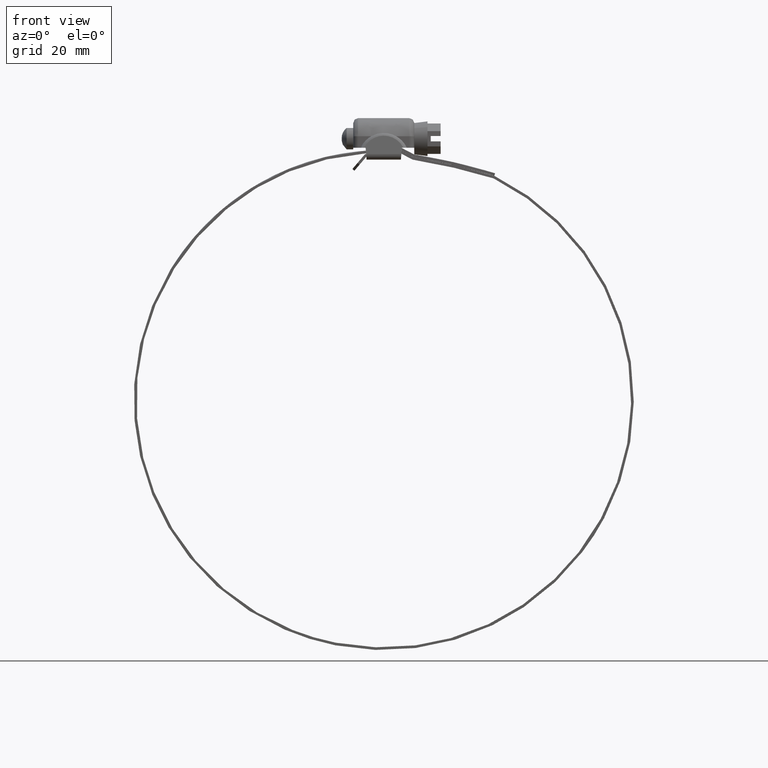
[diagram: clean part render]
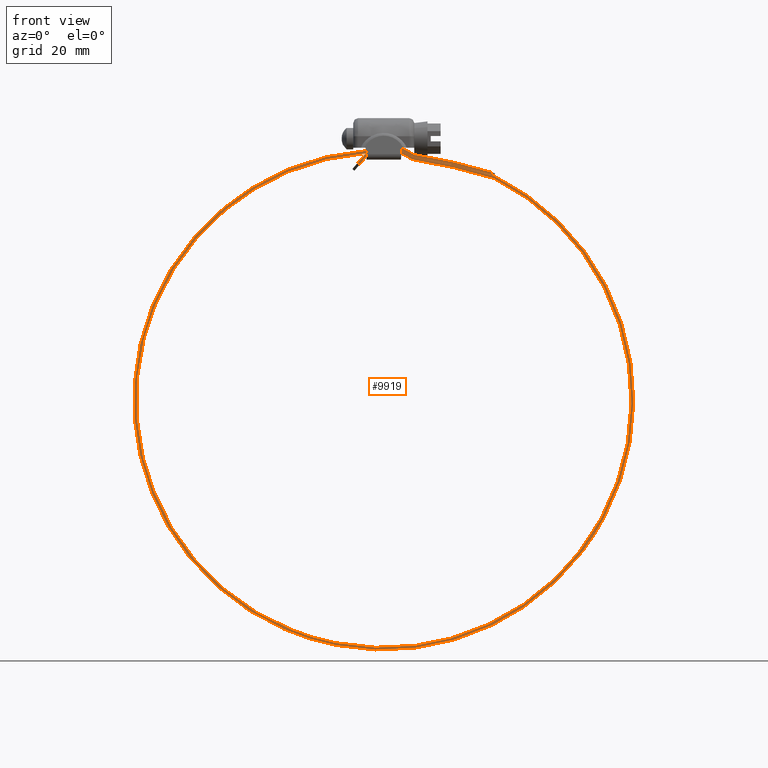
[diagram: same view with one face highlighted and labeled with its STEP entity id]
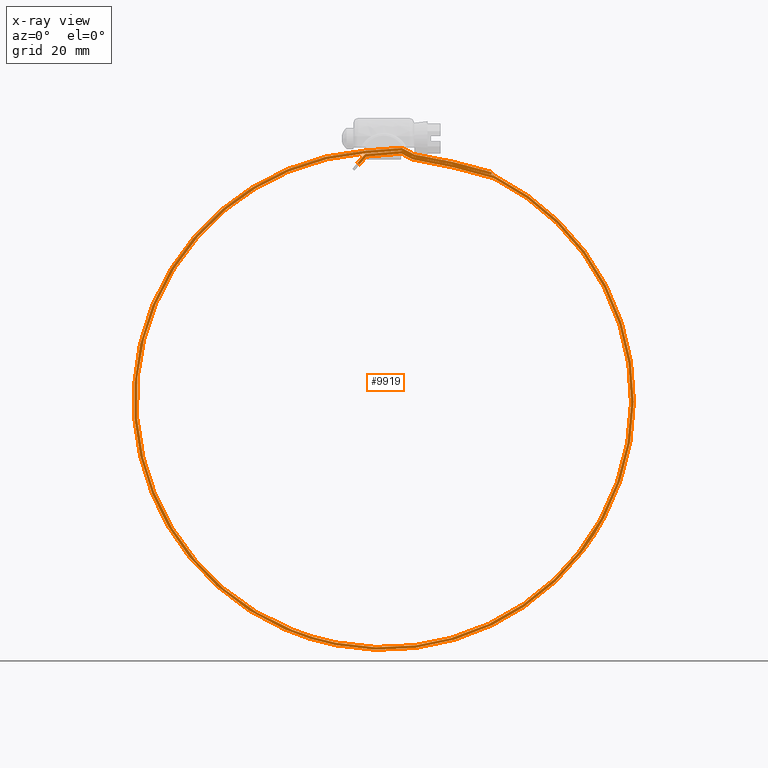
[diagram: x-ray of the same camera — body ghosted, the highlighted face saturated]
A machine part, front view. The second image highlights one B-rep face of the part: STEP entity #9919.
The next image is the same camera in x-ray: the body ghosted, the highlighted face saturated — about 0% of this face is hidden behind the body in this view.
In plain terms, the highlighted face is a freeform B-spline surface patch.
Its self-contained STEP definition (entity closure, byte-faithful):
#3607=CARTESIAN_POINT('',(-7.334361929926100,-6.500000000000000,7.958637885833559));
#3608=VERTEX_POINT('',#3607);
#3616=CARTESIAN_POINT('',(-7.943455344057590,-6.500000000000000,8.477295010398191));
#3617=VERTEX_POINT('',#3616);
#3618=CARTESIAN_POINT('',(-7.943455344057590,-6.500000000000000,8.477295010398191));
#3619=CARTESIAN_POINT('',(-7.334361929926100,-6.500000000000000,7.958637885833559));
#3620=QUASI_UNIFORM_CURVE('',1,(#3618,#3619),.UNSPECIFIED.,.F.,.U.);
#3621=EDGE_CURVE('',#3617,#3608,#3620,.T.);
#7412=CARTESIAN_POINT('',(5.350584004149351,-6.500000000000000,11.284100049500440));
#7413=VERTEX_POINT('',#7412);
#7414=CARTESIAN_POINT('',(-5.275000303620000,-6.500000000000000,10.377082643439200));
#7415=VERTEX_POINT('',#7414);
#7416=CARTESIAN_POINT('',(5.350584004149351,-6.500000000000000,11.284100049500440));
#7417=CARTESIAN_POINT('',(-5.275000303620000,-6.500000000000000,10.377082643439200));
#7418=QUASI_UNIFORM_CURVE('',1,(#7416,#7417),.UNSPECIFIED.,.F.,.U.);
#7419=EDGE_CURVE('',#7413,#7415,#7418,.T.);
#7457=CARTESIAN_POINT('',(8.409524026193219,-6.500000000000000,9.652007014257469));
#7458=VERTEX_POINT('',#7457);
#7459=CARTESIAN_POINT('',(8.409524026193219,-6.500000000000000,9.652007014257469));
#7460=CARTESIAN_POINT('',(7.411814090376696,-6.500000000000010,10.235884569071681));
#7461=CARTESIAN_POINT('',(6.391114566021566,-6.499999999999984,10.780479185074430));
#7462=CARTESIAN_POINT('',(5.350584004149351,-6.500000000000000,11.284100049500440));
#7463=B_SPLINE_CURVE_WITH_KNOTS('',3,(#7459,#7460,#7461,#7462),.UNSPECIFIED.,.F.,.U.,(4,4),(1.960010E-010,3.468006973094209),.UNSPECIFIED.);
#7464=EDGE_CURVE('',#7458,#7413,#7463,.T.);
#7498=CARTESIAN_POINT('',(9.034344727401120,-6.500000000000000,9.428133363201031));
#7499=VERTEX_POINT('',#7498);
#7500=CARTESIAN_POINT('',(8.409524026193219,-6.500000000000000,9.652007014257469));
#7501=CARTESIAN_POINT('',(8.601531745470265,-6.500000000000003,9.539531337299104));
#7502=CARTESIAN_POINT('',(8.814583246503087,-6.500000000000007,9.463149329200387));
#7503=CARTESIAN_POINT('',(9.034344727401120,-6.500000000000000,9.428133363201031));
#7504=B_SPLINE_CURVE_WITH_KNOTS('',3,(#7500,#7501,#7502,#7503),.UNSPECIFIED.,.F.,.U.,(4,4),(0.000000018586229,0.667550729342896),.UNSPECIFIED.);
#7505=EDGE_CURVE('',#7458,#7499,#7504,.T.);
#7539=CARTESIAN_POINT('',(33.150857247208052,-6.500000000000000,3.834687449468040));
#7540=VERTEX_POINT('',#7539);
#7541=CARTESIAN_POINT('',(33.150857247208052,-6.500000000000000,3.834687449468040));
#7542=CARTESIAN_POINT('',(21.286673602179302,-6.500000000000000,7.468167339103021));
#7543=CARTESIAN_POINT('',(9.034344727401120,-6.500000000000000,9.428133363201031));
#7551=(BOUNDED_CURVE()B_SPLINE_CURVE(2,(#7541,#7542,#7543),.UNSPECIFIED.,.F.,.U.)CURVE()GEOMETRIC_REPRESENTATION_ITEM()QUASI_UNIFORM_CURVE()RATIONAL_B_SPLINE_CURVE((1.0,0.997600974387081,1.0))REPRESENTATION_ITEM(''));
#7552=EDGE_CURVE('',#7540,#7499,#7551,.T.);
#7592=CARTESIAN_POINT('',(33.425985728803802,-6.500000000000000,3.724938107956930));
#7593=VERTEX_POINT('',#7592);
#7594=CARTESIAN_POINT('',(33.425985728803802,-6.500000000000000,3.724938107956930));
#7595=CARTESIAN_POINT('',(33.150857247208052,-6.500000000000000,3.834687449468040));
#7596=QUASI_UNIFORM_CURVE('',1,(#7594,#7595),.UNSPECIFIED.,.F.,.U.);
#7597=EDGE_CURVE('',#7593,#7540,#7596,.T.);
#7641=CARTESIAN_POINT('',(-5.338461257189120,-6.500000000000000,11.395269278505181));
#7642=VERTEX_POINT('',#7641);
#7643=CARTESIAN_POINT('',(-14.558013353557570,-6.500000000000000,-136.988024527932990));
#7644=VERTEX_POINT('',#7643);
#7645=CARTESIAN_POINT('',(-5.338461257189120,-6.500000000000000,11.395269278505181));
#7646=CARTESIAN_POINT('',(-8.839073002824588,-6.499999999999994,11.145637640756149));
#7647=CARTESIAN_POINT('',(-14.969169750287460,-6.500000000000004,10.272537669454190));
#7648=CARTESIAN_POINT('',(-23.788038318695289,-6.500000000000046,7.879603603241993));
#7649=CARTESIAN_POINT('',(-30.717045281121742,-6.499999999999887,5.133980738027380));
#7650=CARTESIAN_POINT('',(-37.595842927194923,-6.500000000000005,1.616103376315774));
#7651=CARTESIAN_POINT('',(-43.522346783040753,-6.500000000000044,-2.167441237042125));
#7652=CARTESIAN_POINT('',(-49.680326249766637,-6.499999999999912,-7.066958850217896));
#7653=CARTESIAN_POINT('',(-55.027600322506800,-6.500000000000043,-12.255521630897370));
#7654=CARTESIAN_POINT('',(-60.168055779909409,-6.499999999999987,-18.401045571593919));
#7655=CARTESIAN_POINT('',(-64.391517027488518,-6.500000000000004,-24.710498029391239));
#7656=CARTESIAN_POINT('',(-68.086762280790651,-6.499999999999999,-31.658218938984909));
#7657=CARTESIAN_POINT('',(-70.797958370658137,-6.500000000000003,-38.296630191258579));
#7658=CARTESIAN_POINT('',(-73.164313358935217,-6.499999999999999,-46.241565019510134));
#7659=CARTESIAN_POINT('',(-74.574747411570371,-6.500000000000000,-53.993457485310657));
#7660=CARTESIAN_POINT('',(-75.093843785991808,-6.500000000000000,-61.987470941762567));
#7661=CARTESIAN_POINT('',(-74.894728276584146,-6.500000000000001,-69.151337258874506));
#7662=CARTESIAN_POINT('',(-73.978918484119760,-6.500000000000004,-76.544559184188373));
#7663=CARTESIAN_POINT('',(-72.332724373947684,-6.499999999999998,-83.666996652713053));
#7664=CARTESIAN_POINT('',(-69.660252097845685,-6.500000000000006,-91.662571386886299));
#7665=CARTESIAN_POINT('',(-66.378911589451860,-6.499999999999991,-98.674274824807640));
#7666=CARTESIAN_POINT('',(-62.046207829794007,-6.500000000000003,-105.740675100145690));
#7667=CARTESIAN_POINT('',(-57.412329846222562,-6.499999999999995,-111.930225913450400));
#7668=CARTESIAN_POINT('',(-52.192162547752240,-6.500000000000005,-117.447010579024000));
#7669=CARTESIAN_POINT('',(-46.463048217743527,-6.500000000000001,-122.418877945733900));
#7670=CARTESIAN_POINT('',(-40.762397152652170,-6.500000000000030,-126.531058565425890));
#7671=CARTESIAN_POINT('',(-32.838368367069869,-6.499999999999812,-131.079148403453100));
#7672=CARTESIAN_POINT('',(-24.119003282187649,-6.500000000000553,-134.682459640423500));
#7673=CARTESIAN_POINT('',(-17.449917377589081,-6.499999999999369,-136.415829005432410));
#7674=CARTESIAN_POINT('',(-14.558013353557570,-6.500000000000000,-136.988024527932990));
#7675=B_SPLINE_CURVE_WITH_KNOTS('',3,(#7645,#7646,#7647,#7648,#7649,#7650,#7651,#7652,#7653,#7654,#7655,#7656,#7657,#7658,#7659,#7660,#7661,#7662,#7663,#7664,#7665,#7666,#7667,#7668,#7669,#7670,#7671,#7672,#7673,#7674),.UNSPECIFIED.,.F.,.U.,(4,1,1,1,1,1,1,1,1,1,1,1,1,1,1,1,1,1,1,1,1,1,1,1,1,1,1,4),(0.000000010513844,10.528492650992950,18.530248075813091,27.374319465152411,32.849189425840137,41.693239027958271,48.431553257959202,56.433302936505697,64.013913218641562,72.436822031292451,79.175120242724205,87.597969977119632,93.915123619693986,104.022605962955300,111.181954793391500,117.920291690577900,125.500858715576300,133.502646059162000,139.819766944982400,150.769539278992200,156.665562656991800,164.667318739878510,173.932505646795310,179.407390756058310,187.409149826756790,194.989715022270300,206.781799653549910,215.625735641637900),.UNSPECIFIED.);
#7676=EDGE_CURVE('',#7642,#7644,#7675,.T.);
#7678=CARTESIAN_POINT('',(-14.558013353557570,-6.500000000000000,-136.988024527932990));
#7679=CARTESIAN_POINT('',(-10.564450373587601,-6.500000000000021,-137.778533414834410));
#7680=CARTESIAN_POINT('',(-3.427791399468834,-6.499999999999959,-138.594619889465410));
#7681=CARTESIAN_POINT('',(7.538133318076641,-6.499999999999994,-138.273694364109590));
#7682=CARTESIAN_POINT('',(18.089294179869359,-6.500000000000060,-136.497045437968210));
#7683=CARTESIAN_POINT('',(27.716125824517079,-6.499999999999887,-133.323208164474290));
#7684=CARTESIAN_POINT('',(35.836671547957529,-6.500000000000193,-129.452409439205810));
#7685=CARTESIAN_POINT('',(42.553678722824202,-6.500000000000097,-125.346454492267300));
#7686=CARTESIAN_POINT('',(49.798472459403193,-6.499999999999854,-119.777567807619900));
#7687=CARTESIAN_POINT('',(56.175282925111752,-6.500000000000130,-113.412012947915600));
#7688=CARTESIAN_POINT('',(62.035004978558298,-6.500000000000092,-105.860707994109500));
#7689=CARTESIAN_POINT('',(66.919902988571579,-6.499999999999903,-97.800229043183009));
#7690=CARTESIAN_POINT('',(70.655207200908137,-6.500000000000033,-89.140953584958424));
#7691=CARTESIAN_POINT('',(72.976476874664201,-6.499999999999994,-81.179426449795585));
#7692=CARTESIAN_POINT('',(74.470790885095965,-6.500000000000005,-73.454329606580899));
#7693=CARTESIAN_POINT('',(75.229745428967576,-6.499999999999997,-64.483208903869638));
#7694=CARTESIAN_POINT('',(74.735711431948843,-6.500000000000005,-55.206462173524137));
#7695=CARTESIAN_POINT('',(73.252010875025093,-6.500000000000002,-46.762790772520077));
#7696=CARTESIAN_POINT('',(71.022601858082368,-6.500000000000000,-38.774967751137403));
#7697=CARTESIAN_POINT('',(67.919167166654375,-6.499999999999999,-31.227510334397639));
#7698=CARTESIAN_POINT('',(63.859020268007669,-6.500000000000007,-23.838065596921840));
#7699=CARTESIAN_POINT('',(59.629899674256798,-6.499999999999989,-17.702445647565231));
#7700=CARTESIAN_POINT('',(54.972077261299077,-6.500000000000029,-12.254577200320400));
#7701=CARTESIAN_POINT('',(50.160909385245013,-6.499999999999861,-7.529377103792776));
#7702=CARTESIAN_POINT('',(43.328652781680667,-6.500000000000525,-1.897731997164813));
#7703=CARTESIAN_POINT('',(37.447600619407403,-6.499999999999196,1.723281938495391));
#7704=CARTESIAN_POINT('',(33.425985728803802,-6.500000000000000,3.724938107956930));
#7705=B_SPLINE_CURVE_WITH_KNOTS('',3,(#7678,#7679,#7680,#7681,#7682,#7683,#7684,#7685,#7686,#7687,#7688,#7689,#7690,#7691,#7692,#7693,#7694,#7695,#7696,#7697,#7698,#7699,#7700,#7701,#7702,#7703,#7704),.UNSPECIFIED.,.F.,.U.,(4,1,1,1,1,1,1,1,1,1,1,1,1,1,1,1,1,1,1,1,1,1,1,1,4),(9.513855E-009,12.213124430602679,21.478288789677041,32.849189424953181,44.220099486419628,51.800712720080163,59.802455848191670,67.804220370833036,79.175120242015396,86.755720162000387,96.442065570665349,107.391726360600700,114.972212515860410,121.289383502385900,130.975715113436510,141.925492090373100,149.084955473464390,156.665562656680290,166.773043288146200,173.511353111653790,181.934262378482400,189.093673898449400,194.989715022167100,202.149187754913210,215.625735641638100),.UNSPECIFIED.);
#7706=EDGE_CURVE('',#7644,#7593,#7705,.T.);
#7950=CARTESIAN_POINT('',(-14.664934127459681,-6.500000000000000,-137.782362436395200));
#7951=VERTEX_POINT('',#7950);
#7952=CARTESIAN_POINT('',(33.721856889841597,-6.500000000000000,4.471264890627210));
#7953=VERTEX_POINT('',#7952);
#7954=CARTESIAN_POINT('',(-14.664934127459681,-6.500000000000000,-137.782362436395200));
#7955=CARTESIAN_POINT('',(-10.488708936732969,-6.500000000000017,-138.606238365326990));
#7956=CARTESIAN_POINT('',(-2.138593473158030,-6.499999999999992,-139.531880437837200));
#7957=CARTESIAN_POINT('',(9.659404168884542,-6.499999999999979,-138.880057134712590));
#7958=CARTESIAN_POINT('',(19.268559081184879,-6.500000000000041,-136.891646057724810));
#7959=CARTESIAN_POINT('',(28.042732483480901,-6.499999999999849,-134.019688843566600));
#7960=CARTESIAN_POINT('',(34.890597940620218,-6.500000000000301,-130.867053075810500));
#7961=CARTESIAN_POINT('',(42.094992311415098,-6.499999999999829,-126.593908380609800));
#7962=CARTESIAN_POINT('',(47.490679764410579,-6.500000000000168,-122.653083120105510));
#7963=CARTESIAN_POINT('',(53.208678757264472,-6.499999999999776,-117.545195388587900));
#7964=CARTESIAN_POINT('',(59.128948344175782,-6.500000000000045,-111.214354845915000));
#7965=CARTESIAN_POINT('',(64.401051371220106,-6.499999999999996,-103.783529740177200));
#7966=CARTESIAN_POINT('',(68.751651590411569,-6.500000000000145,-95.640672200152295));
#7967=CARTESIAN_POINT('',(72.206784793500333,-6.499999999999440,-87.227192110175523));
#7968=CARTESIAN_POINT('',(74.682777697393348,-6.500000000000236,-77.723759568245413));
#7969=CARTESIAN_POINT('',(75.763524242181262,-6.499999999999945,-68.548250099665267));
#7970=CARTESIAN_POINT('',(75.883475562179044,-6.500000000000147,-59.600901994597031));
#7971=CARTESIAN_POINT('',(75.007595094175173,-6.499999999999550,-51.252860680832619));
#7972=CARTESIAN_POINT('',(73.198680486805856,-6.500000000000966,-43.360492907036807));
#7973=CARTESIAN_POINT('',(70.929846553097349,-6.499999999999476,-36.333665322517490));
#7974=CARTESIAN_POINT('',(67.639273310286214,-6.500000000000304,-28.774862904169488));
#7975=CARTESIAN_POINT('',(63.078761730296819,-6.499999999999907,-21.064898683959161));
#7976=CARTESIAN_POINT('',(57.473972466438759,-6.500000000000090,-13.723870093947751));
#7977=CARTESIAN_POINT('',(50.545395213052373,-6.499999999999506,-6.578293722177172));
#7978=CARTESIAN_POINT('',(42.434612688564087,-6.500000000001464,-0.314866003915563));
#7979=CARTESIAN_POINT('',(36.390436153411763,-6.499999999998126,3.145701279308716));
#7980=CARTESIAN_POINT('',(33.721856889841597,-6.500000000000000,4.471264890627210));
#7981=B_SPLINE_CURVE_WITH_KNOTS('',3,(#7954,#7955,#7956,#7957,#7958,#7959,#7960,#7961,#7962,#7963,#7964,#7965,#7966,#7967,#7968,#7969,#7970,#7971,#7972,#7973,#7974,#7975,#7976,#7977,#7978,#7979,#7980),.UNSPECIFIED.,.F.,.U.,(4,1,1,1,1,1,1,1,1,1,1,1,1,1,1,1,1,1,1,1,1,1,1,1,4),(0.000000011255509,12.770107177361160,25.114625343880789,35.330752712515618,42.141531122269811,52.783363094299801,57.891442160244480,67.256226882444054,72.790004045196582,80.877762308394324,93.222278890299634,100.033048795670990,108.546436751490600,120.465209376221690,129.404297325835700,136.215089431370500,147.282571693549500,154.519015714904100,160.478443902826800,169.417581020018500,179.208064217055810,187.295847518150400,197.086316378855000,209.005171785361310,217.944205741731790),.UNSPECIFIED.);
#7982=EDGE_CURVE('',#7951,#7953,#7981,.T.);
#7984=CARTESIAN_POINT('',(-5.426163509383840,-6.500000000000000,12.191038855462240));
#7985=VERTEX_POINT('',#7984);
#7986=CARTESIAN_POINT('',(-5.426163509383840,-6.500000000000000,12.191038855462240));
#7987=CARTESIAN_POINT('',(-9.671991321533431,-6.500000000000001,11.886681832802640));
#7988=CARTESIAN_POINT('',(-17.549261526614799,-6.500000000000007,10.648127067495629));
#7989=CARTESIAN_POINT('',(-27.971313868817841,-6.499999999999999,7.273747008619103));
#7990=CARTESIAN_POINT('',(-37.593086626075497,-6.500000000000001,2.684074529795235));
#7991=CARTESIAN_POINT('',(-45.199107378962147,-6.500000000000014,-2.328275262208848));
#7992=CARTESIAN_POINT('',(-52.130665297249877,-6.499999999999956,-8.207496562358459));
#7993=CARTESIAN_POINT('',(-57.650576746853183,-6.500000000000018,-13.942251046477290));
#7994=CARTESIAN_POINT('',(-62.388148468791890,-6.499999999999996,-20.159175873189039));
#7995=CARTESIAN_POINT('',(-66.433346527304906,-6.500000000000017,-26.673400790914410));
#7996=CARTESIAN_POINT('',(-70.410315254503018,-6.499999999999970,-34.694908053266602));
#7997=CARTESIAN_POINT('',(-73.344453544589854,-6.500000000000106,-43.470851494598953));
#7998=CARTESIAN_POINT('',(-75.311180182991137,-6.499999999999810,-53.361609921609819));
#7999=CARTESIAN_POINT('',(-76.068812560700820,-6.500000000000243,-63.006136979804587));
#8000=CARTESIAN_POINT('',(-75.414863146835060,-6.499999999999850,-72.658272938902286));
#8001=CARTESIAN_POINT('',(-73.947116298230540,-6.500000000000014,-80.475599984762923));
#8002=CARTESIAN_POINT('',(-71.865599743133643,-6.500000000000159,-88.003152893248085));
#8003=CARTESIAN_POINT('',(-68.336932130046804,-6.499999999999689,-96.855953940954535));
#8004=CARTESIAN_POINT('',(-63.316351155274212,-6.499999999999985,-105.461563919496800));
#8005=CARTESIAN_POINT('',(-57.695355597526707,-6.500000000000100,-112.786922124906300));
#8006=CARTESIAN_POINT('',(-52.808492082670362,-6.499999999999944,-117.945399224762400));
#8007=CARTESIAN_POINT('',(-47.256554646523277,-6.500000000000014,-122.812474954517300));
#8008=CARTESIAN_POINT('',(-41.515494246204192,-6.500000000000013,-126.997685391443600));
#8009=CARTESIAN_POINT('',(-35.126459735069737,-6.499999999999846,-130.706965998042390));
#8010=CARTESIAN_POINT('',(-26.362166451917751,-6.500000000000661,-134.762530652206890));
#8011=CARTESIAN_POINT('',(-19.537443227752579,-6.499999999999074,-136.822161330428710));
#8012=CARTESIAN_POINT('',(-14.664934127459681,-6.500000000000000,-137.782362436395200));
#8013=B_SPLINE_CURVE_WITH_KNOTS('',3,(#7986,#7987,#7988,#7989,#7990,#7991,#7992,#7993,#7994,#7995,#7996,#7997,#7998,#7999,#8000,#8001,#8002,#8003,#8004,#8005,#8006,#8007,#8008,#8009,#8010,#8011,#8012),.UNSPECIFIED.,.F.,.U.,(4,1,1,1,1,1,1,1,1,1,1,1,1,1,1,1,1,1,1,1,1,1,1,1,4),(0.000000010823470,12.770107161384971,23.837571933169301,32.776735206137907,44.695591411666697,51.080670106641549,60.019800570390117,68.533270420668657,74.492692280932260,83.006166331448128,95.350681334579221,102.161375548727410,113.228765851090600,124.296214574691010,131.106993474905690,137.066464178530400,147.708252985388500,159.627104550963710,166.863534216208510,175.377005775138510,180.910755064147710,188.998552527346790,196.660627765741910,203.045708020677410,217.944205475951890),.UNSPECIFIED.);
#8014=EDGE_CURVE('',#7985,#7951,#8013,.T.);
#8249=CARTESIAN_POINT('',(33.448809308833802,-6.500000000000000,4.580100710691060));
#8250=VERTEX_POINT('',#8249);
#8251=CARTESIAN_POINT('',(33.721856889841597,-6.500000000000000,4.471264890627210));
#8252=CARTESIAN_POINT('',(33.448809308833802,-6.500000000000000,4.580100710691060));
#8253=QUASI_UNIFORM_CURVE('',1,(#8251,#8252),.UNSPECIFIED.,.F.,.U.);
#8254=EDGE_CURVE('',#7953,#8250,#8253,.T.);
#8286=CARTESIAN_POINT('',(9.160710449614690,-6.500000000000000,10.218091256498241));
#8287=VERTEX_POINT('',#8286);
#8288=CARTESIAN_POINT('',(33.448809308833802,-6.500000000000000,4.580100710691060));
#8289=CARTESIAN_POINT('',(21.500903325130302,-6.500000000000000,8.244069440496068));
#8290=CARTESIAN_POINT('',(9.160710449614690,-6.500000000000000,10.218091256498241));
#8298=(BOUNDED_CURVE()B_SPLINE_CURVE(2,(#8288,#8289,#8290),.UNSPECIFIED.,.F.,.U.)CURVE()GEOMETRIC_REPRESENTATION_ITEM()QUASI_UNIFORM_CURVE()RATIONAL_B_SPLINE_CURVE((1.0,0.997588120171000,1.0))REPRESENTATION_ITEM(''));
#8299=EDGE_CURVE('',#8250,#8287,#8298,.T.);
#8339=CARTESIAN_POINT('',(8.813587898151640,-6.500000000000000,10.342463655763220));
#8340=VERTEX_POINT('',#8339);
#8341=CARTESIAN_POINT('',(8.813587898151640,-6.500000000000000,10.342463655763220));
#8342=CARTESIAN_POINT('',(8.920251638442155,-6.500000000000007,10.279944387410540));
#8343=CARTESIAN_POINT('',(9.038630901423465,-6.499999999999997,10.237575866588410));
#8344=CARTESIAN_POINT('',(9.160710449614690,-6.500000000000000,10.218091256498241));
#8345=B_SPLINE_CURVE_WITH_KNOTS('',3,(#8341,#8342,#8343,#8344),.UNSPECIFIED.,.F.,.U.,(4,4),(0.000000026759819,0.370885690302564),.UNSPECIFIED.);
#8346=EDGE_CURVE('',#8340,#8287,#8345,.T.);
#8380=CARTESIAN_POINT('',(5.500344020004950,-6.500000000000000,12.099792746931600));
#8381=VERTEX_POINT('',#8380);
#8382=CARTESIAN_POINT('',(8.813587898151640,-6.500000000000000,10.342463655763220));
#8383=CARTESIAN_POINT('',(7.734311769276084,-6.499999999999999,10.974079455051291));
#8384=CARTESIAN_POINT('',(6.628607876263082,-6.499999999999999,11.560537233217110));
#8385=CARTESIAN_POINT('',(5.500344020004950,-6.500000000000000,12.099792746931600));
#8386=B_SPLINE_CURVE_WITH_KNOTS('',3,(#8382,#8383,#8384,#8385),.UNSPECIFIED.,.F.,.U.,(4,4),(1.761249E-010,3.751535780570708),.UNSPECIFIED.);
#8387=EDGE_CURVE('',#8340,#8381,#8386,.T.);
#8412=CARTESIAN_POINT('',(-5.670817275161910,-6.500000000000000,11.146204420696600));
#8413=VERTEX_POINT('',#8412);
#8414=CARTESIAN_POINT('',(-5.670817275161910,-6.500000000000000,11.146204420696600));
#8415=CARTESIAN_POINT('',(5.500344020004950,-6.500000000000000,12.099792746931600));
#8416=QUASI_UNIFORM_CURVE('',1,(#8414,#8415),.UNSPECIFIED.,.F.,.U.);
#8417=EDGE_CURVE('',#8413,#8381,#8416,.T.);
#8452=CARTESIAN_POINT('',(-7.943455344057590,-6.500000000000000,8.477295010398191));
#8453=CARTESIAN_POINT('',(-5.670817275161910,-6.500000000000000,11.146204420696600));
#8454=QUASI_UNIFORM_CURVE('',1,(#8452,#8453),.UNSPECIFIED.,.F.,.U.);
#8455=EDGE_CURVE('',#3617,#8413,#8454,.T.);
#8495=CARTESIAN_POINT('',(-5.275000303620000,-6.500000000000000,10.377082643439200));
#8496=CARTESIAN_POINT('',(-7.334361929926100,-6.500000000000000,7.958637885833559));
#8497=QUASI_UNIFORM_CURVE('',1,(#8495,#8496),.UNSPECIFIED.,.F.,.U.);
#8498=EDGE_CURVE('',#7415,#3608,#8497,.T.);
#9341=CARTESIAN_POINT('',(32.505389203886637,-6.500000000000000,4.877023384676110));
#9342=VERTEX_POINT('',#9341);
#9349=CARTESIAN_POINT('',(32.740841359934848,-6.500000000000000,5.641608711449110));
#9350=VERTEX_POINT('',#9349);
#9356=CARTESIAN_POINT('',(32.740841359934848,-6.500000000000000,5.641608711449110));
#9357=CARTESIAN_POINT('',(32.505389203886637,-6.500000000000000,4.877023384676110));
#9358=QUASI_UNIFORM_CURVE('',1,(#9356,#9357),.UNSPECIFIED.,.F.,.U.);
#9359=EDGE_CURVE('',#9350,#9342,#9358,.T.);
#9672=CARTESIAN_POINT('',(9.253433697636870,-6.500000000000000,11.023552157425680));
#9673=VERTEX_POINT('',#9672);
#9674=CARTESIAN_POINT('',(5.496837753181450,-6.500000000000000,12.997385959790400));
#9675=VERTEX_POINT('',#9674);
#9676=CARTESIAN_POINT('',(9.253433697636870,-6.500000000000000,11.023552157425680));
#9677=CARTESIAN_POINT('',(8.032716484386727,-6.500000000000011,11.739221117555211));
#9678=CARTESIAN_POINT('',(6.778714745766499,-6.499999999999990,12.398116850871300));
#9679=CARTESIAN_POINT('',(5.496837753181450,-6.500000000000000,12.997385959790400));
#9680=B_SPLINE_CURVE_WITH_KNOTS('',3,(#9676,#9677,#9678,#9679),.UNSPECIFIED.,.F.,.U.,(4,4),(3.042819E-010,4.245120925561869),.UNSPECIFIED.);
#9681=EDGE_CURVE('',#9673,#9675,#9680,.T.);
#9721=CARTESIAN_POINT('',(8.848831030040550,-6.500000000000000,10.333409649407200));
#9722=VERTEX_POINT('',#9721);
#9723=CARTESIAN_POINT('',(9.127223045796569,-6.500000000000000,10.233570593487499));
#9724=VERTEX_POINT('',#9723);
#9725=CARTESIAN_POINT('',(8.848831030040550,-6.500000000000000,10.333409649407200));
#9726=CARTESIAN_POINT('',(8.936300890318078,-6.500000000000008,10.287216089256029));
#9727=CARTESIAN_POINT('',(9.030339811697708,-6.499999999999996,10.253506761363200));
#9728=CARTESIAN_POINT('',(9.127223045796569,-6.500000000000000,10.233570593487499));
#9729=B_SPLINE_CURVE_WITH_KNOTS('',3,(#9725,#9726,#9727,#9728),.UNSPECIFIED.,.F.,.U.,(4,4),(0.000000015027014,0.296754159195925),.UNSPECIFIED.);
#9730=EDGE_CURVE('',#9722,#9724,#9729,.T.);
#9770=CARTESIAN_POINT('',(5.318512208410001,-6.500000000000000,12.197259749997860));
#9771=VERTEX_POINT('',#9770);
#9772=CARTESIAN_POINT('',(8.848831030040550,-6.500000000000000,10.333409649407200));
#9773=CARTESIAN_POINT('',(7.700484256121626,-6.499999999999988,11.006651866847530));
#9774=CARTESIAN_POINT('',(6.522155282603892,-6.500000000000007,11.628753664388279));
#9775=CARTESIAN_POINT('',(5.318512208410001,-6.500000000000000,12.197259749997860));
#9776=B_SPLINE_CURVE_WITH_KNOTS('',3,(#9772,#9773,#9774,#9775),.UNSPECIFIED.,.F.,.U.,(4,4),(2.405609E-010,3.993450951113547),.UNSPECIFIED.);
#9777=EDGE_CURVE('',#9722,#9771,#9776,.T.);
#9811=CARTESIAN_POINT('',(5.318512208410001,-6.500000000000000,12.197259749997860));
#9812=CARTESIAN_POINT('',(1.752961444401555,-6.500000000000006,12.190475209907470));
#9813=CARTESIAN_POINT('',(-1.812057514704825,-6.500000000000009,11.922245295028350));
#9814=CARTESIAN_POINT('',(-5.338461257189120,-6.500000000000000,11.395269278505181));
#9815=B_SPLINE_CURVE_WITH_KNOTS('',3,(#9811,#9812,#9813,#9814),.UNSPECIFIED.,.F.,.U.,(4,4),(5.608225E-010,10.696663447564410),.UNSPECIFIED.);
#9816=EDGE_CURVE('',#9771,#7642,#9815,.T.);
#9844=CARTESIAN_POINT('',(5.496837753181450,-6.500000000000000,12.997385959790400));
#9845=CARTESIAN_POINT('',(1.842572806028015,-6.499999999999980,12.999333683468620));
#9846=CARTESIAN_POINT('',(-1.811801637663414,-6.500000000000025,12.729623315350130));
#9847=CARTESIAN_POINT('',(-5.426163509383840,-6.500000000000000,12.191038855462240));
#9848=B_SPLINE_CURVE_WITH_KNOTS('',3,(#9844,#9845,#9846,#9847),.UNSPECIFIED.,.F.,.U.,(4,4),(6.073400E-010,10.962788654296020),.UNSPECIFIED.);
#9849=EDGE_CURVE('',#9675,#7985,#9848,.T.);
#9863=CARTESIAN_POINT('',(-83.322474621350437,-6.500000000000000,20.600349510690119));
#9864=CARTESIAN_POINT('',(83.305460010244047,-6.500000000000000,20.600349510690119));
#9865=CARTESIAN_POINT('',(-83.322474621350437,-6.500000000000000,-146.817070074023010));
#9866=CARTESIAN_POINT('',(83.305460010244047,-6.500000000000000,-146.817070074023010));
#9867=B_SPLINE_SURFACE_WITH_KNOTS('',1,1,((#9863,#9865),(#9864,#9866)),.UNSPECIFIED.,.F.,.F.,.U.,(2,2),(2,2),(0.0,166.627934631594510),(0.0,167.417419584713090),.UNSPECIFIED.);
#9868=ORIENTED_EDGE('',*,*,#8455,.F.);
#9869=ORIENTED_EDGE('',*,*,#3621,.T.);
#9870=ORIENTED_EDGE('',*,*,#8498,.F.);
#9871=ORIENTED_EDGE('',*,*,#7419,.F.);
#9872=ORIENTED_EDGE('',*,*,#7464,.F.);
#9873=ORIENTED_EDGE('',*,*,#7505,.T.);
#9874=ORIENTED_EDGE('',*,*,#7552,.F.);
#9875=ORIENTED_EDGE('',*,*,#7597,.F.);
#9876=ORIENTED_EDGE('',*,*,#7706,.F.);
#9877=ORIENTED_EDGE('',*,*,#7676,.F.);
#9878=ORIENTED_EDGE('',*,*,#9816,.F.);
#9879=ORIENTED_EDGE('',*,*,#9777,.F.);
#9880=ORIENTED_EDGE('',*,*,#9730,.T.);
#9881=CARTESIAN_POINT('',(32.505389203886637,-6.500000000000000,4.877023384676110));
#9882=CARTESIAN_POINT('',(20.995516394834532,-6.500000000000000,8.337444015106888));
#9883=CARTESIAN_POINT('',(9.127223045796569,-6.500000000000000,10.233570593487499));
#9891=(BOUNDED_CURVE()B_SPLINE_CURVE(2,(#9881,#9882,#9883),.UNSPECIFIED.,.F.,.U.)CURVE()GEOMETRIC_REPRESENTATION_ITEM()QUASI_UNIFORM_CURVE()RATIONAL_B_SPLINE_CURVE((1.0,0.997768840873101,1.0))REPRESENTATION_ITEM(''));
#9892=EDGE_CURVE('',#9342,#9724,#9891,.T.);
#9893=ORIENTED_EDGE('',*,*,#9892,.F.);
#9894=ORIENTED_EDGE('',*,*,#9359,.F.);
#9895=CARTESIAN_POINT('',(32.740841359934848,-6.500000000000000,5.641608711449110));
#9896=CARTESIAN_POINT('',(21.177237500218741,-6.500000000000000,9.118557004326844));
#9897=CARTESIAN_POINT('',(9.253433697636870,-6.500000000000000,11.023552157425680));
#9905=(BOUNDED_CURVE()B_SPLINE_CURVE(2,(#9895,#9896,#9897),.UNSPECIFIED.,.F.,.U.)CURVE()GEOMETRIC_REPRESENTATION_ITEM()QUASI_UNIFORM_CURVE()RATIONAL_B_SPLINE_CURVE((1.0,0.997767851864314,1.0))REPRESENTATION_ITEM(''));
#9906=EDGE_CURVE('',#9350,#9673,#9905,.T.);
#9907=ORIENTED_EDGE('',*,*,#9906,.T.);
#9908=ORIENTED_EDGE('',*,*,#9681,.T.);
#9909=ORIENTED_EDGE('',*,*,#9849,.T.);
#9910=ORIENTED_EDGE('',*,*,#8014,.T.);
#9911=ORIENTED_EDGE('',*,*,#7982,.T.);
#9912=ORIENTED_EDGE('',*,*,#8254,.T.);
#9913=ORIENTED_EDGE('',*,*,#8299,.T.);
#9914=ORIENTED_EDGE('',*,*,#8346,.F.);
#9915=ORIENTED_EDGE('',*,*,#8387,.T.);
#9916=ORIENTED_EDGE('',*,*,#8417,.F.);
#9917=EDGE_LOOP('',(#9868,#9869,#9870,#9871,#9872,#9873,#9874,#9875,#9876,#9877,#9878,#9879,#9880,#9893,#9894,#9907,#9908,#9909,#9910,#9911,#9912,#9913,#9914,#9915,#9916));
#9918=FACE_OUTER_BOUND('',#9917,.T.);
#9919=ADVANCED_FACE('',(#9918),#9867,.F.);